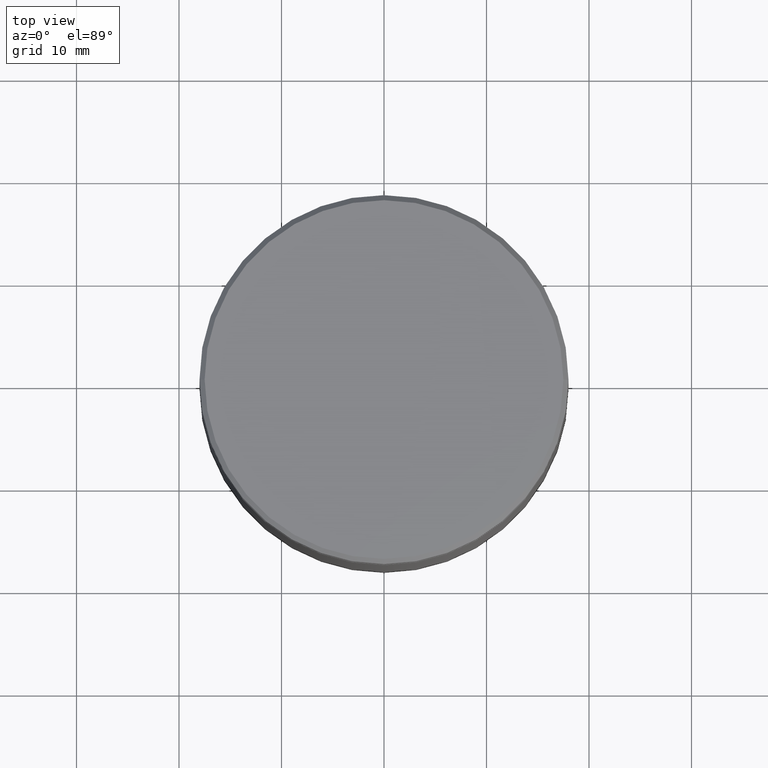
[diagram: clean part render]
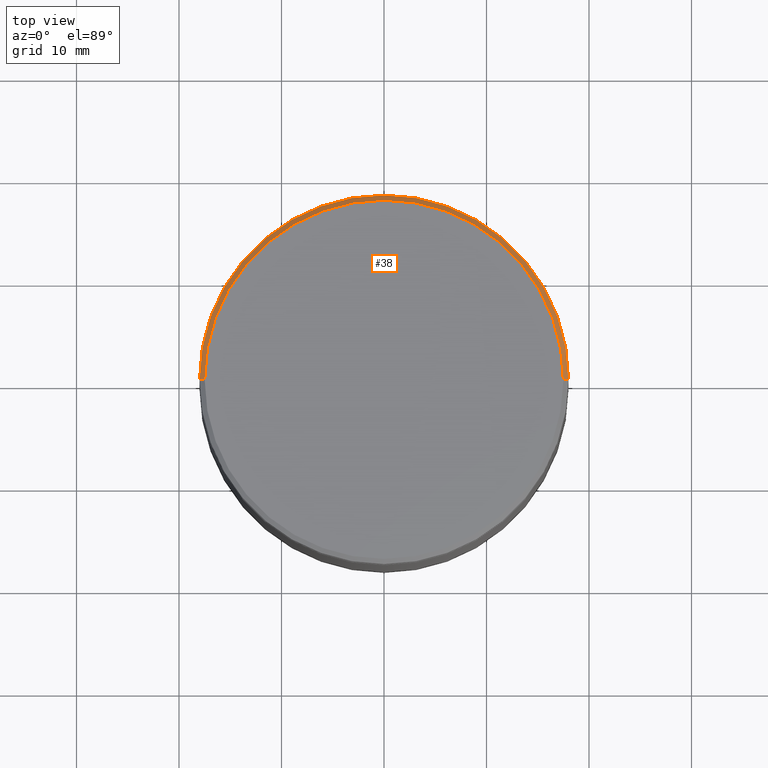
[diagram: same view with one face highlighted and labeled with its STEP entity id]
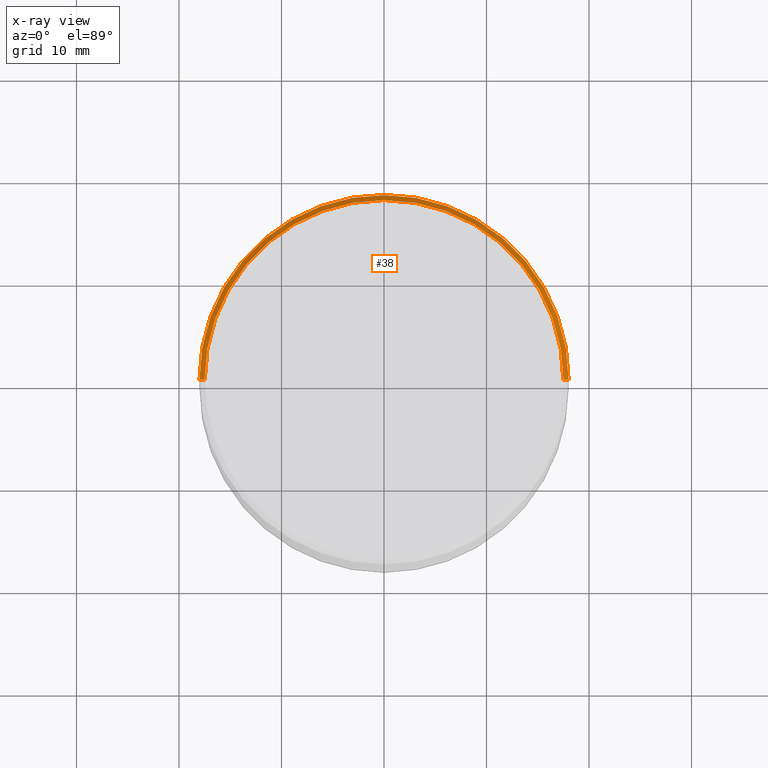
[diagram: x-ray of the same camera — body ghosted, the highlighted face saturated]
A machine part, top view. The second image highlights one B-rep face of the part: STEP entity #38.
The next image is the same camera in x-ray: the body ghosted, the highlighted face saturated — about 0% of this face is hidden behind the body in this view.
In plain terms, the highlighted conical surface has half-angle 45 deg.
Its self-contained STEP definition (entity closure, byte-faithful):
#11 = EDGE_CURVE ( 'NONE', #449, #253, #263, .T. ) ;
#15 = LINE ( 'NONE', #104, #275 ) ;
#24 = CARTESIAN_POINT ( 'NONE',  ( 17.50000000000000000, 2.173748068486551641E-15, 0.000000000000000000 ) ) ;
#38 = ADVANCED_FACE ( 'NONE', ( #308 ), #187, .T. ) ;
#45 = ORIENTED_EDGE ( 'NONE', *, *, #11, .F. ) ;
#58 = EDGE_CURVE ( 'NONE', #449, #135, #212, .T. ) ;
#104 = CARTESIAN_POINT ( 'NONE',  ( -17.50000000000000000, 0.000000000000000000, 0.000000000000000000 ) ) ;
#105 = DIRECTION ( 'NONE',  ( -0.000000000000000000, -0.000000000000000000, 1.000000000000000000 ) ) ;
#134 = ORIENTED_EDGE ( 'NONE', *, *, #58, .T. ) ;
#135 = VERTEX_POINT ( 'NONE', #370 ) ;
#147 = DIRECTION ( 'NONE',  ( -0.7071067811865376918, 0.000000000000000000, -0.7071067811865574537 ) ) ;
#148 = EDGE_CURVE ( 'NONE', #309, #135, #268, .T. ) ;
#156 = ORIENTED_EDGE ( 'NONE', *, *, #148, .F. ) ;
#167 = DIRECTION ( 'NONE',  ( 1.000000000000000000, 0.000000000000000000, 0.000000000000000000 ) ) ;
#187 = CONICAL_SURFACE ( 'NONE', #198, 17.50000000000000000, 0.7853981633974344012 ) ;
#193 = EDGE_CURVE ( 'NONE', #253, #309, #15, .T. ) ;
#198 = AXIS2_PLACEMENT_3D ( 'NONE', #220, #270, #394 ) ;
#200 = CARTESIAN_POINT ( 'NONE',  ( 0.000000000000000000, 0.000000000000000000, -0.5000000000000108802 ) ) ;
#212 = LINE ( 'NONE', #381, #473 ) ;
#220 = CARTESIAN_POINT ( 'NONE',  ( 0.000000000000000000, 0.000000000000000000, 0.000000000000000000 ) ) ;
#253 = VERTEX_POINT ( 'NONE', #363 ) ;
#263 = CIRCLE ( 'NONE', #561, 17.50000000000000000 ) ;
#268 = CIRCLE ( 'NONE', #543, 18.00000000000000000 ) ;
#270 = DIRECTION ( 'NONE',  ( 0.000000000000000000, 0.000000000000000000, -1.000000000000000000 ) ) ;
#275 = VECTOR ( 'NONE', #147, 999.9999999999998863 ) ;
#291 = DIRECTION ( 'NONE',  ( 1.000000000000000000, 0.000000000000000000, 0.000000000000000000 ) ) ;
#308 = FACE_OUTER_BOUND ( 'NONE', #531, .T. ) ;
#309 = VERTEX_POINT ( 'NONE', #504 ) ;
#363 = CARTESIAN_POINT ( 'NONE',  ( -17.50000000000000000, 0.000000000000000000, 0.000000000000000000 ) ) ;
#370 = CARTESIAN_POINT ( 'NONE',  ( 18.00000000000000000, 0.000000000000000000, -0.5000000000000108802 ) ) ;
#373 = DIRECTION ( 'NONE',  ( 0.000000000000000000, 0.000000000000000000, -1.000000000000000000 ) ) ;
#374 = CARTESIAN_POINT ( 'NONE',  ( 0.000000000000000000, 0.000000000000000000, 0.000000000000000000 ) ) ;
#381 = CARTESIAN_POINT ( 'NONE',  ( 17.50000000000000000, 2.143131898507868248E-15, 0.000000000000000000 ) ) ;
#394 = DIRECTION ( 'NONE',  ( -1.000000000000000000, 0.000000000000000000, 0.000000000000000000 ) ) ;
#421 = ORIENTED_EDGE ( 'NONE', *, *, #193, .F. ) ;
#449 = VERTEX_POINT ( 'NONE', #24 ) ;
#473 = VECTOR ( 'NONE', #560, 999.9999999999998863 ) ;
#504 = CARTESIAN_POINT ( 'NONE',  ( -18.00000000000000000, 2.204364238465235428E-15, -0.5000000000000108802 ) ) ;
#531 = EDGE_LOOP ( 'NONE', ( #45, #134, #156, #421 ) ) ;
#543 = AXIS2_PLACEMENT_3D ( 'NONE', #200, #373, #167 ) ;
#560 = DIRECTION ( 'NONE',  ( 0.7071067811865376918, 8.659560562354813296E-17, -0.7071067811865574537 ) ) ;
#561 = AXIS2_PLACEMENT_3D ( 'NONE', #374, #105, #291 ) ;